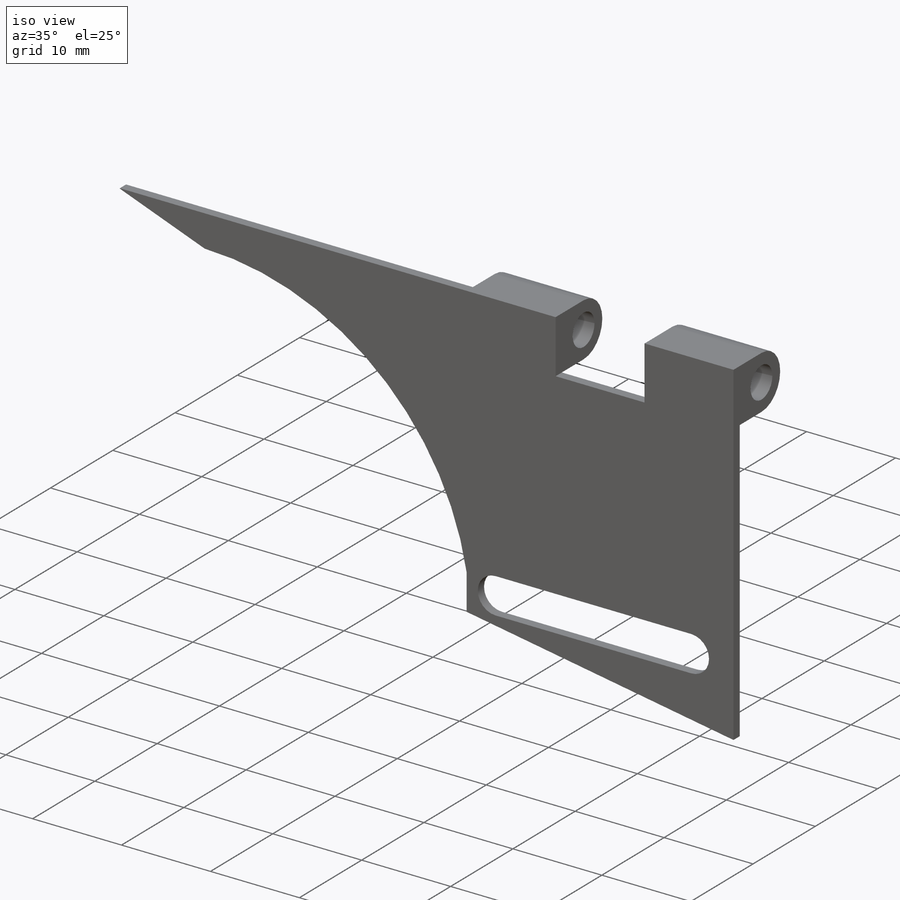
[diagram: iso view]
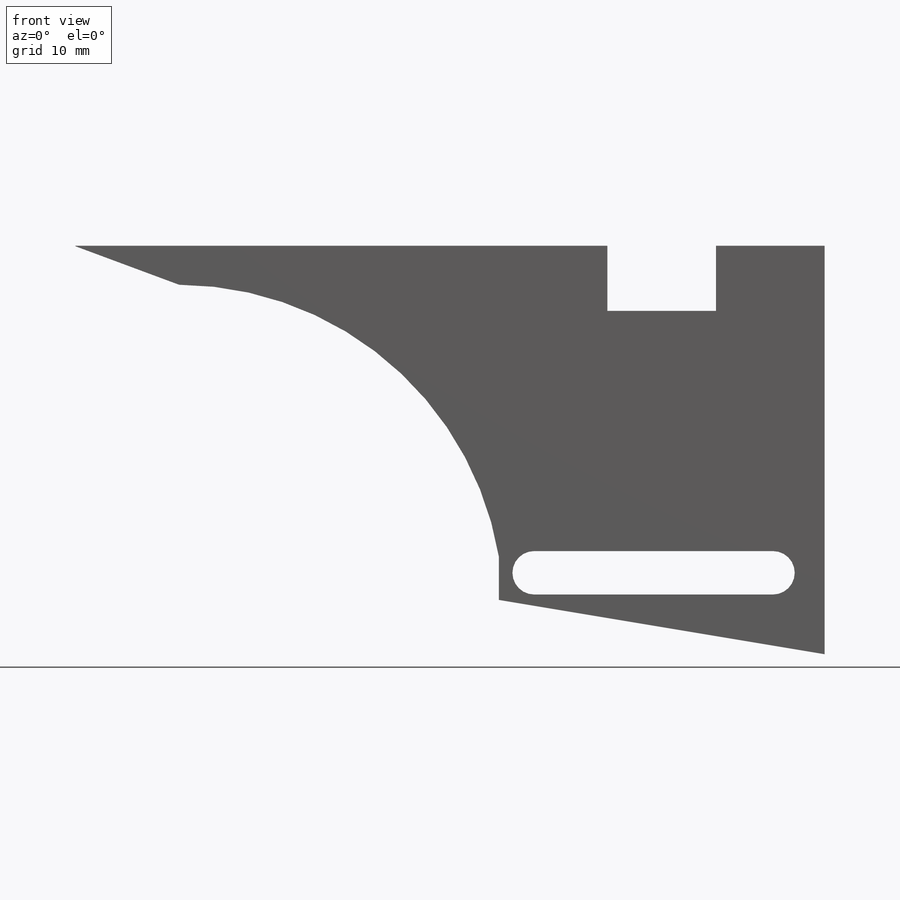
[diagram: front view]
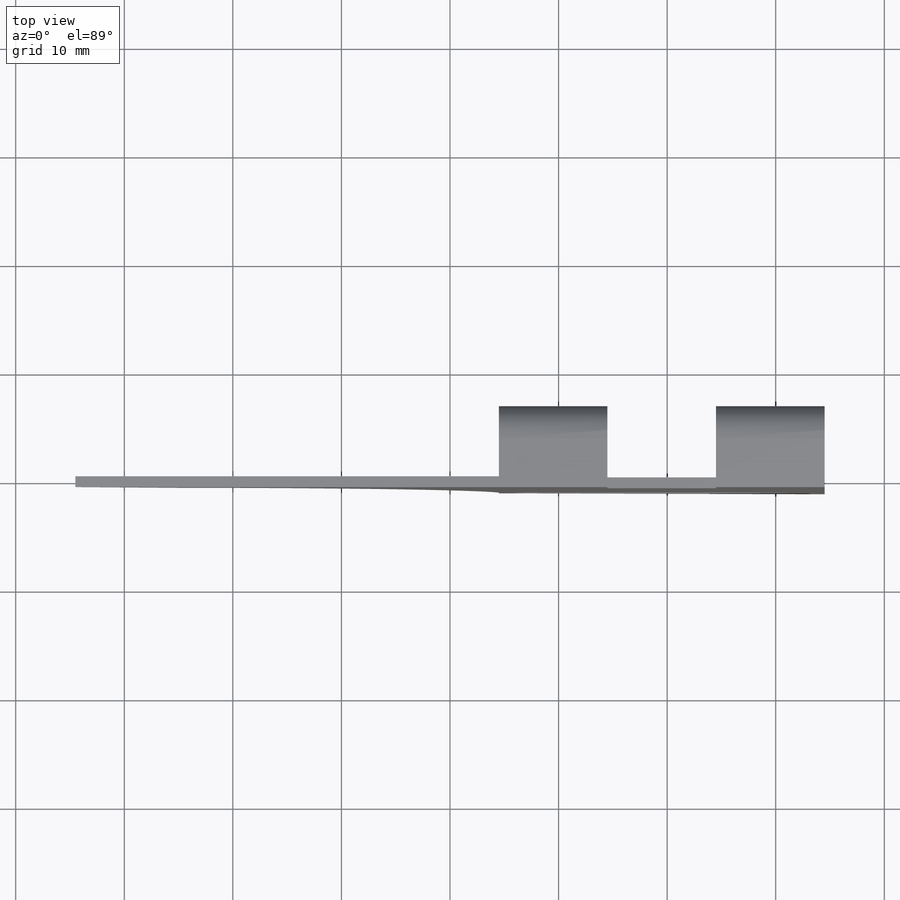
[diagram: top view]
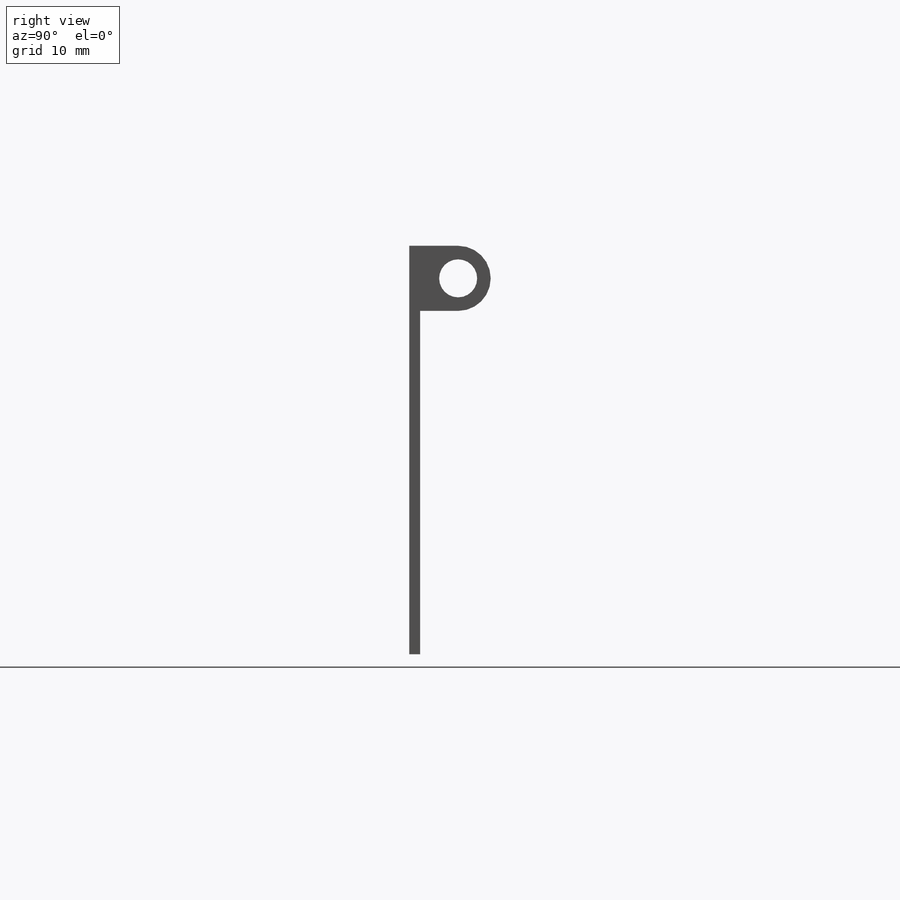
[diagram: right view]
SOLIDWORKS PART (.sldprt)
format: sldprt  version: not decoded by parser v0  size: 272,384 bytes
history: native  units: mm
features: sketch x5, cut_extrude x3, extrude x2, material x1, pattern_linear x1, chamfer x1 (+13 scaffold rows collapsed)
feature tree (26):
  scaffold x13  (default folders/planes/origin — collapsed)
  material  "Material <not specified>"
  sketch  "Sketch1"  dims[c1.D2=45.0mm c1.D5=30.0mm c1.D1=69.0mm c1.D3=7.7mm c1.D4=37.62mm c2.D5=~13.554066mm c3.D5=15.0deg c3.D6=14.0mm c3.D7=~26.503097mm c4.D6=2.5mm c4.D7=0.0mm c4.D3=8.0mm c5.D6=3.5mm c5.D7=31.0mm c6.D6=4.0mm c6.D8=5.0mm c6.D9=4.0mm c6.D2=4.0mm]
  extrude  "Boss-Extrude1"  Depth=1mm
  sketch  "Sketch2"  dims[c1.D1=2.0mm c1.D2=22.0mm c1.D3=5.82mm c1.D4=4.75mm c2.D3=7.5mm]
  cut_extrude  "Cut-Extrude1"  [1 undecoded]
  sketch  "Sketch3"  dims[D1=3.0mm D2=3.5mm]
  extrude  "Boss-Extrude2"  Depth=10mm
  pattern_linear  "LPattern1"  Count1=2 Count2=1 Spacing1=20mm Spacing2=10mm
  sketch  "Sketch4"  dims[D1=3.5mm]
  cut_extrude  "Cut-Extrude2"  [1 undecoded]
  chamfer  "Chamfer1"  Distance=4mm Angle=70deg
  sketch  "Sketch5"
  cut_extrude  "Cut-Extrude3"  [1 undecoded]
decode coverage: 8 of 12 modeling features carry decoded parameters
note: ~ marks probable driven/reference dimensions
note: 3 parameter values undecoded
summary: no parameter record found for 3 features
note: suppression state not decoded; provenance and decode notes live in map.json
